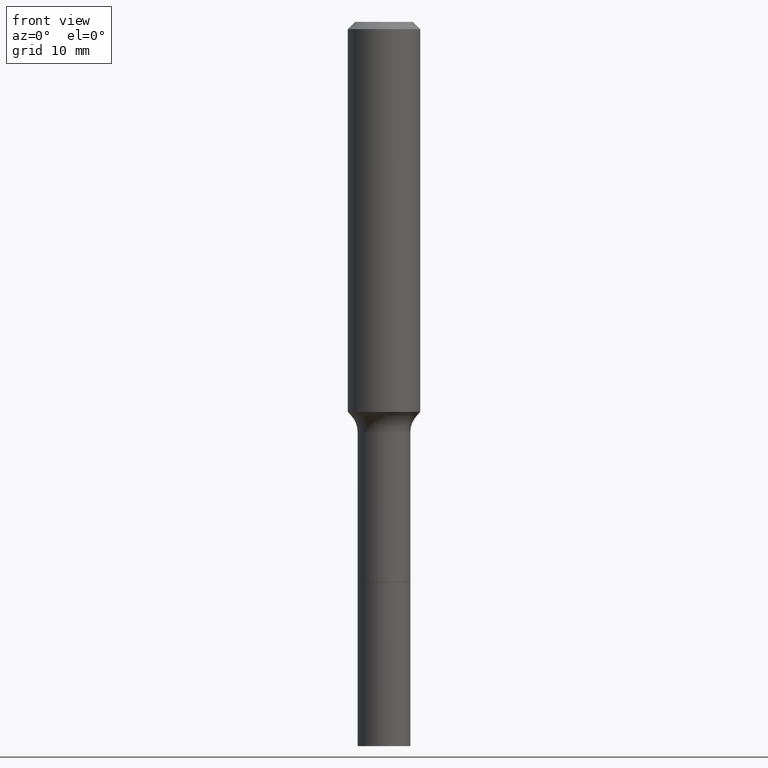
[diagram: clean part render]
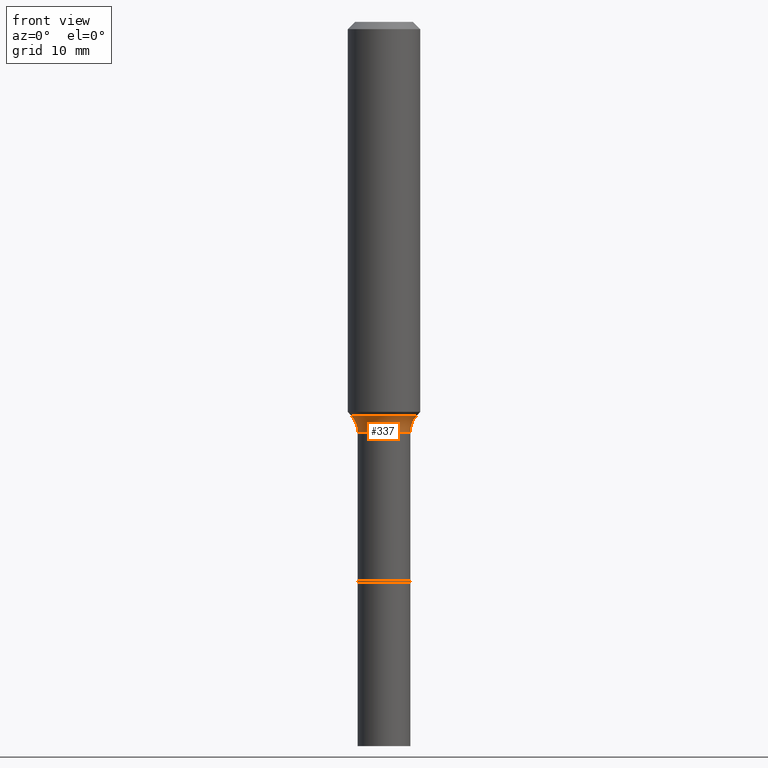
[diagram: same view with one face highlighted and labeled with its STEP entity id]
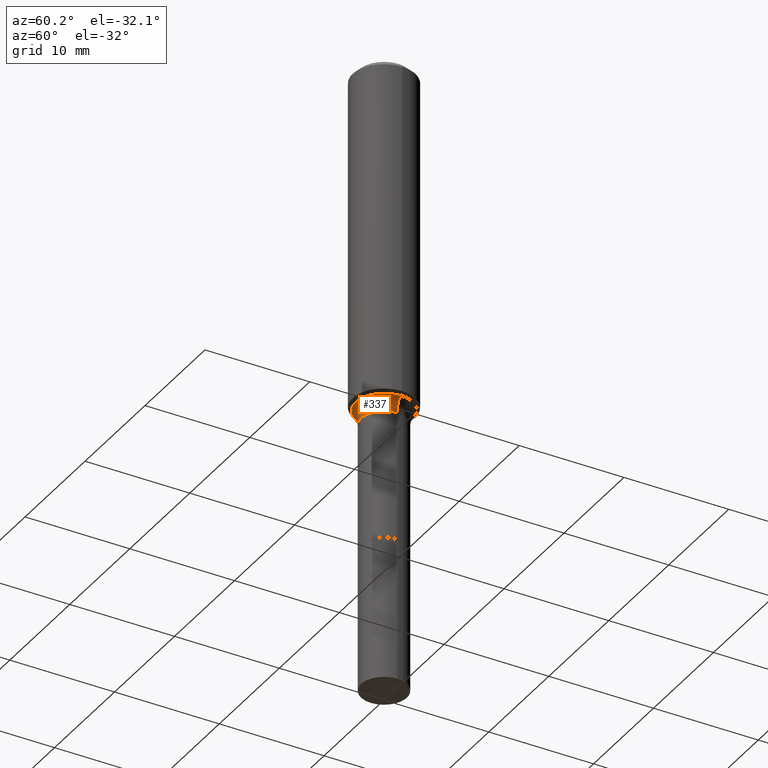
[diagram: same view with one face highlighted and labeled with its STEP entity id]
A machine part, front view. The second image highlights one B-rep face of the part: STEP entity #337.
A second angle (auxiliary view) of the same face is appended — the face is thin or edge-on in the first view.
In plain terms, the highlighted toroidal blend (fillet) surface has major radius 4.2151 mm and minor (blend) radius 2.032 mm.
Its self-contained STEP definition (entity closure, byte-faithful):
#8 = DIRECTION ( 'NONE',  ( 1.000000000000000000, -6.982962677686266711E-15, 0.000000000000000000 ) ) ;
#16 = CIRCLE ( 'NONE', #114, 0.1074417038704664068 ) ;
#17 = FACE_OUTER_BOUND ( 'NONE', #185, .T. ) ;
#19 = CIRCLE ( 'NONE', #307, 0.08000000000000007105 ) ;
#23 = EDGE_CURVE ( 'NONE', #411, #332, #16, .T. ) ;
#37 = CARTESIAN_POINT ( 'NONE',  ( 3.139101899204768444E-29, -4.481805563857509473E-15, -1.283640131194999867 ) ) ;
#60 = DIRECTION ( 'NONE',  ( -2.445468806185136597E-29, 3.491481338843145583E-15, 1.000000000000000000 ) ) ;
#92 = CARTESIAN_POINT ( 'NONE',  ( 0.08594999999999992923, -5.272485969787030971E-15, -1.338200000000000056 ) ) ;
#111 = EDGE_CURVE ( 'NONE', #411, #257, #19, .T. ) ;
#114 = AXIS2_PLACEMENT_3D ( 'NONE', #37, #478, #244 ) ;
#118 = AXIS2_PLACEMENT_3D ( 'NONE', #295, #461, #505 ) ;
#125 = DIRECTION ( 'NONE',  ( 7.105427357601001859E-15, 1.000000000000000000, -3.491481338843145583E-15 ) ) ;
#127 = CARTESIAN_POINT ( 'NONE',  ( 0.1659499999999999031, -5.831122984001931835E-15, -1.338200000000000056 ) ) ;
#129 = AXIS2_PLACEMENT_3D ( 'NONE', #127, #366, #291 ) ;
#144 = ORIENTED_EDGE ( 'NONE', *, *, #267, .F. ) ;
#185 = EDGE_LOOP ( 'NONE', ( #433, #467, #422, #144 ) ) ;
#222 = CARTESIAN_POINT ( 'NONE',  ( -0.08594999999999992923, -4.912637422597108147E-15, -1.338200000000000056 ) ) ;
#231 = AXIS2_PLACEMENT_3D ( 'NONE', #333, #60, #8 ) ;
#238 = DIRECTION ( 'NONE',  ( -1.000000000000000000, 7.105427357601005014E-15, 0.000000000000000000 ) ) ;
#244 = DIRECTION ( 'NONE',  ( 1.000000000000000000, -6.982962677686265922E-15, 0.000000000000000000 ) ) ;
#257 = VERTEX_POINT ( 'NONE', #222 ) ;
#266 = CIRCLE ( 'NONE', #231, 0.08594999999999992923 ) ;
#267 = EDGE_CURVE ( 'NONE', #332, #271, #432, .T. ) ;
#271 = VERTEX_POINT ( 'NONE', #92 ) ;
#291 = DIRECTION ( 'NONE',  ( 1.000000000000000000, -6.982962677686265922E-15, 0.000000000000000000 ) ) ;
#295 = CARTESIAN_POINT ( 'NONE',  ( 3.272526356436949336E-29, -4.672300327639896745E-15, -1.338200000000000056 ) ) ;
#307 = AXIS2_PLACEMENT_3D ( 'NONE', #319, #125, #238 ) ;
#319 = CARTESIAN_POINT ( 'NONE',  ( -0.1659499999999999031, -3.493154657646011372E-15, -1.338200000000000056 ) ) ;
#332 = VERTEX_POINT ( 'NONE', #370 ) ;
#333 = CARTESIAN_POINT ( 'NONE',  ( 3.272526356436949336E-29, -4.672300327639896745E-15, -1.338200000000000056 ) ) ;
#337 = ADVANCED_FACE ( 'NONE', ( #17 ), #369, .F. ) ;
#366 = DIRECTION ( 'NONE',  ( -6.982962677686266711E-15, -1.000000000000000000, 3.491481338843145583E-15 ) ) ;
#369 = TOROIDAL_SURFACE ( 'NONE', #118, 0.1659499999999999031, 0.08000000000000007105 ) ;
#370 = CARTESIAN_POINT ( 'NONE',  ( 0.1074417038704664068, -5.232066972011994856E-15, -1.283640131194999867 ) ) ;
#391 = CARTESIAN_POINT ( 'NONE',  ( -0.1074417038704664068, -3.718386341829031525E-15, -1.283640131194999867 ) ) ;
#411 = VERTEX_POINT ( 'NONE', #391 ) ;
#422 = ORIENTED_EDGE ( 'NONE', *, *, #482, .T. ) ;
#432 = CIRCLE ( 'NONE', #129, 0.08000000000000007105 ) ;
#433 = ORIENTED_EDGE ( 'NONE', *, *, #23, .F. ) ;
#461 = DIRECTION ( 'NONE',  ( -2.445468806185136597E-29, 3.491481338843145583E-15, 1.000000000000000000 ) ) ;
#467 = ORIENTED_EDGE ( 'NONE', *, *, #111, .T. ) ;
#478 = DIRECTION ( 'NONE',  ( -2.445468806185136597E-29, 3.491481338843145583E-15, 1.000000000000000000 ) ) ;
#482 = EDGE_CURVE ( 'NONE', #257, #271, #266, .T. ) ;
#505 = DIRECTION ( 'NONE',  ( 1.000000000000000000, -6.982962677686269077E-15, 4.883557194083113462E-29 ) ) ;